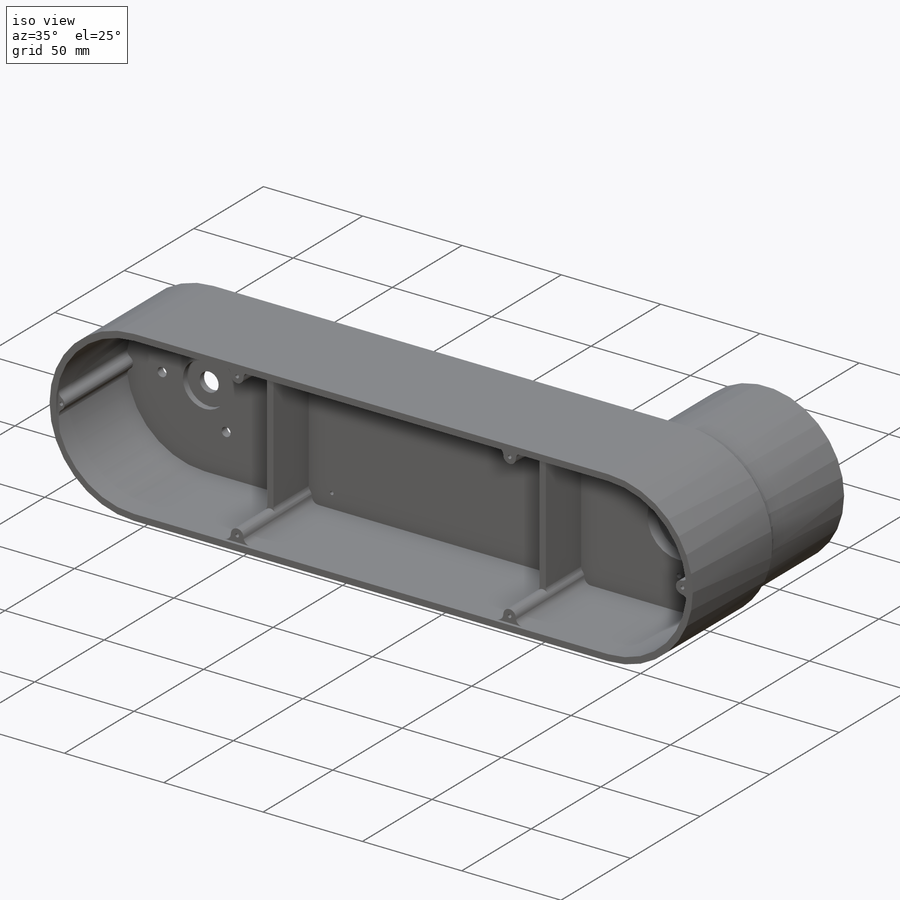
[diagram: iso view]
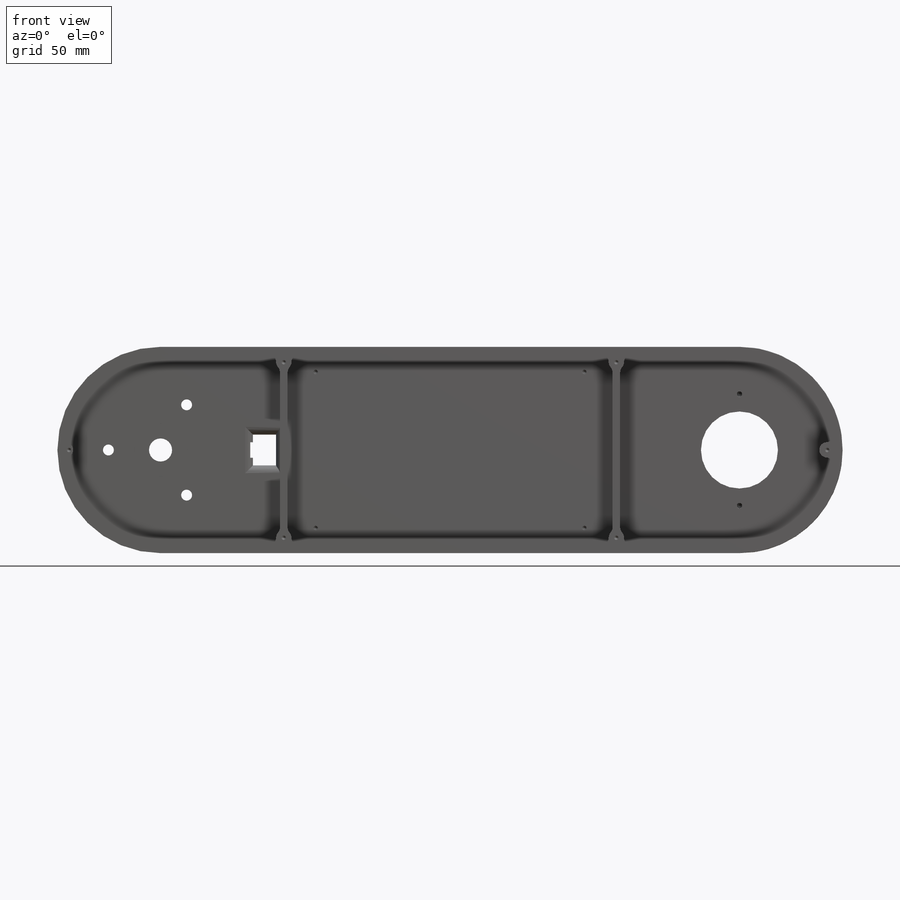
[diagram: front view]
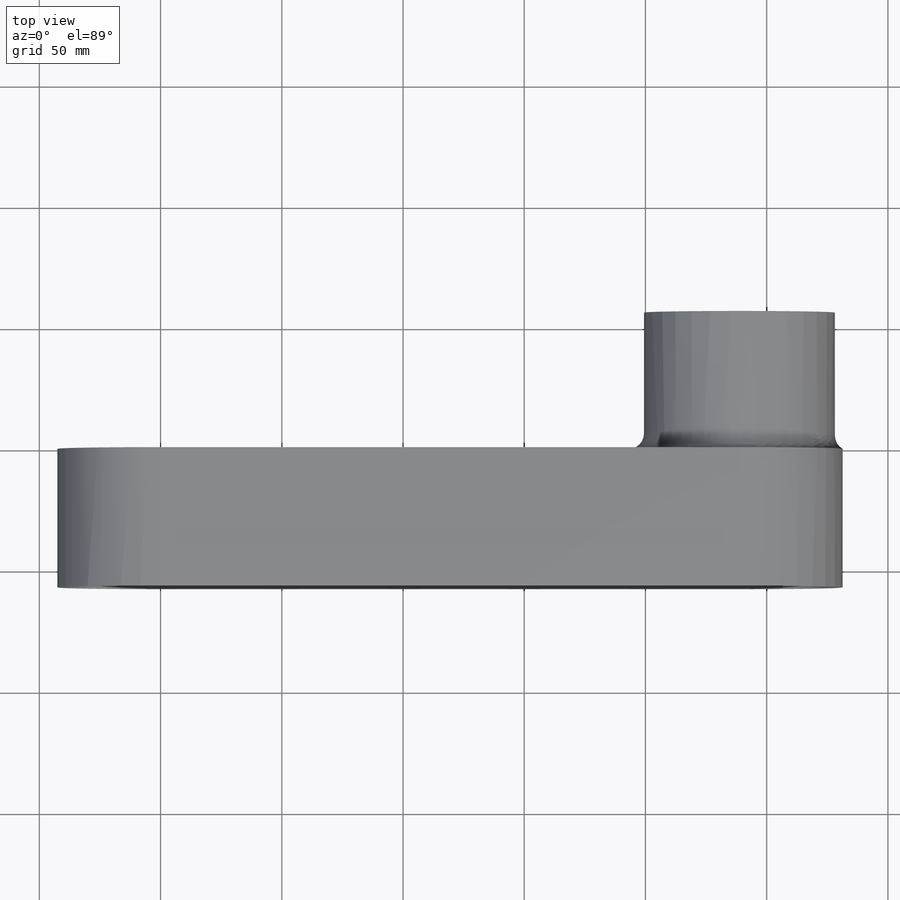
[diagram: top view]
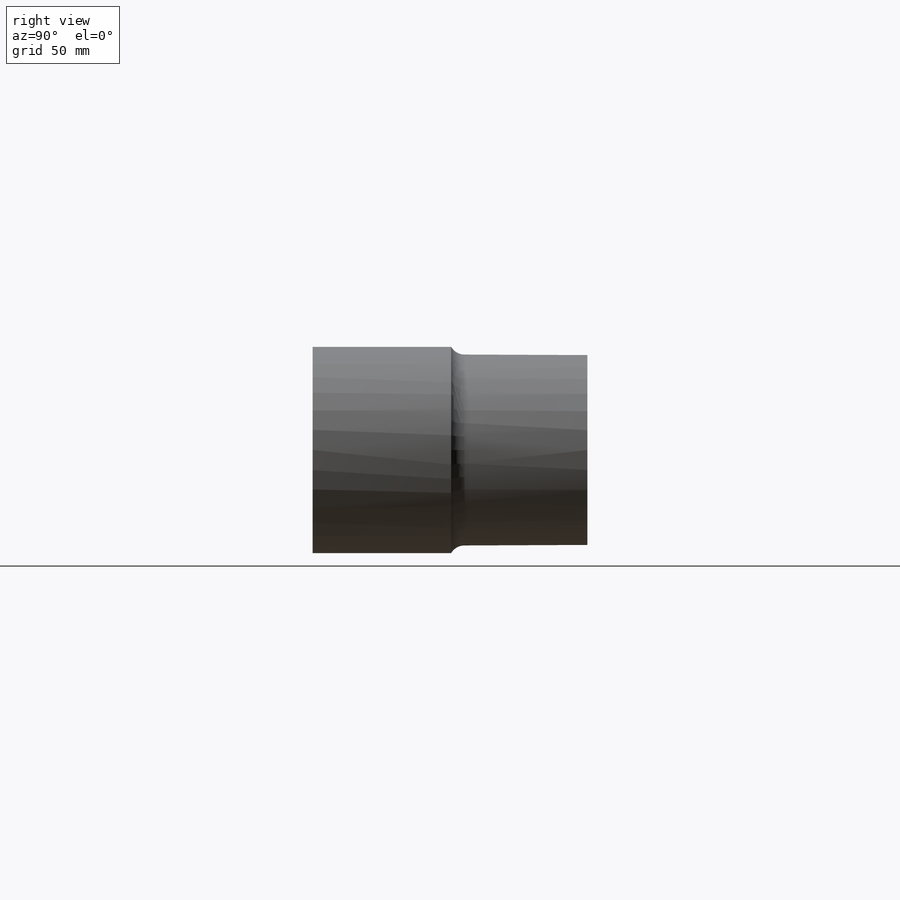
[diagram: right view]
SOLIDWORKS PART (.sldprt)
format: sldprt  version: not decoded by parser v0  size: 947,200 bytes
history: native  units: mm
features: sketch x30, thread x16, extrude x14, cut_extrude x10, plane x7, hole x5, fillet x5, material x1 (+12 scaffold rows collapsed)
feature tree (100):
  scaffold x12  (default folders/planes/origin — collapsed)
  material  "Material <not specified>"
  sketch  "Sketch1"  dims[D1=85.09mm D2=238.76mm D3=3.175mm]
  extrude  "Boss-Extrude1"  Depth=57.15mm
  extrude  "Boss-Extrude3"  [1 undecoded]
  sketch  "Sketch1<4>"  dims[D1=6.35mm]
  plane  "Plane1"
  plane  "Plane2"
  plane  "Plane3"
  sketch  "Sketch3"  dims[D1=9.525mm]
  cut_extrude  "Cut-Extrude1"  [1 undecoded]
  sketch  "Sketch4"  dims[D2=10.0mm D1=17.5mm]
  cut_extrude  "Cut-Extrude2"  Depth=5.08mm
  extrude  "Axis2"  [1 undecoded]
  extrude  "Axis3"  [1 undecoded]
  sketch  "Sketch39"  dims[D1=12.0mm D2=12.0mm]
  cut_extrude  "Cut-Extrude9"  Depth=3.5mm
  sketch  "Sketch5"  dims[c1.D1=63.5mm c1.D2=69.85mm c2.D1=63.5mm c2.D2=3.175mm c3.D1=6.35mm]
  extrude  "Boss-Extrude4"  Depth=56.2125mm
  plane  "Plane4"  Offset=3.175mm
  extrude  "Axis4"  [1 undecoded]
  sketch  "Sketch18"  dims[D1=63.5mm]
  extrude  "Boss-Extrude6"  Depth=27.94mm
  sketch  "Sketch6"  dims[D1=31.75mm]
  cut_extrude  "Cut-Extrude3"  Depth=6.35mm
  plane  "Plane5"
  extrude  "Axis5"  [1 undecoded]
  sketch  "Sketch22"  dims[D1=41.275mm]
  cut_extrude  "Cut-Extrude5"  [1 undecoded]
  plane  "Plane7"  Offset=22.225mm
  sketch  "Sketch19"  dims[D1=43.815mm]
  cut_extrude  "Cut-Extrude4"  Depth=1.7272mm
  sketch  "Sketch10"  dims[D2=4.7625mm D1=7.62mm D3=23.495mm D4=23.495mm D5=12.7mm]
  hole  "#10-32 Tapped Hole2"  Diameter=4.0386mm Depth=3.81mm
  sketch  "Sketch16"
  sketch  "Sketch15"  dims[hole-wizard template sketch: 47 standard entries collapsed; hole parameters kept: c15.Tap Drill Depth=3.81mm c15.D3=~14.816244mm c15.Drill Angle=118.0deg]
  thread  "Hole Thread17"  Diameter=3.81mm  [1 undecoded]
  thread  "Hole Thread18"  Diameter=3.81mm  [1 undecoded]
  thread  "Hole Thread19"  Diameter=3.81mm  [1 undecoded]
  thread  "Hole Thread20"  Diameter=3.81mm  [1 undecoded]
  extrude  "Axis6"  [1 undecoded]
  extrude  "Axis7"  [1 undecoded]
  extrude  "Axis8"  [1 undecoded]
  extrude  "Axis9"  [1 undecoded]
  sketch  "Sketch23"  dims[c1.D2=1.5875mm c1.D1=36.195mm c1.D3=36.195mm c2.D3=4.0]
  cut_extrude  "Cut-Extrude6"  Depth=12.7mm
  sketch  "Sketch24"  dims[D1=46.0248mm D2=~5.514885mm]
  hole  "#4-40 Tapped Hole1"  Diameter=2.2606mm Depth=8.255mm
  sketch  "Sketch26"
  sketch  "Sketch25"  dims[hole-wizard template sketch: 50 standard entries collapsed; hole parameters above]
  thread  "Hole Thread21"  Diameter=6.35mm  [1 undecoded]
  thread  "Hole Thread22"  Diameter=6.35mm  [1 undecoded]
  sketch  "Sketch28"  dims[D1=6.35mm D2=6.35mm D3=50.8mm D4=6.35mm D5=3.175mm D6=50.8mm D7=6.35mm D8=6.35mm D9=6.35mm D10=6.35mm D11=1.5875mm D12=3.175mm D13=3.175mm D14=3.1877mm]
  extrude  "Boss-Extrude7"  Depth=1.5875mm
  extrude  "Boss-Extrude8"  [1 undecoded]
  sketch  "Sketch28<4>"  dims[D1=25.4mm]
  fillet  "Fillet1"  Radius=3.175mm
  fillet  "Fillet2"  Radius=3.175mm
  plane  "Plane8"
  hole  "#2-56 Tapped Hole2"  Diameter=1.778mm Depth=12.7mm
  sketch  "Sketch33"
  sketch  "Sketch31"  dims[hole-wizard template sketch: 50 standard entries collapsed; hole parameters above]
  thread  "Hole Thread23"  Diameter=11.43mm  [1 undecoded]
  thread  "Hole Thread24"  Diameter=11.43mm  [1 undecoded]
  thread  "Hole Thread25"  Diameter=11.43mm  [1 undecoded]
  thread  "Hole Thread26"  Diameter=11.43mm  [1 undecoded]
  thread  "Hole Thread27"  Diameter=11.43mm  [1 undecoded]
  thread  "Hole Thread28"  Diameter=11.43mm  [1 undecoded]
  sketch  "Sketch35"  dims[c1.D1=43.0mm c1.D2=~4.182068mm c2.D2=3.0]
  hole  "CSK for M4 Hex Socket Countersunk Head Screw1"  Diameter=4.5mm Depth=57.15mm
  sketch  "Sketch37"
  sketch  "Sketch36"  dims[hole-wizard template sketch: 55 standard entries collapsed; hole parameters kept: c17.Thru Hole Depth=57.15mm c17.Near C'Sink Dia.=9.18mm c17.D4=~3.666174mm c17.Near C'Sink Angle=90.0deg]
  sketch  "Sketch38"  dims[D1=22.0mm]
  cut_extrude  "Cut-Extrude8"  Depth=3.175mm
  sketch  "Sketch7"  dims[c1.D1=12.7mm c1.D2=117.1702mm c1.D3=78.74mm c1.D4=50.8mm c2.D1=25.4mm c2.D5=25.4mm c2.D4=3.175mm c2.D6=32.1818mm c2.D7=3.175mm]
  fillet  "Fillet7"  Radius=6.35mm
  hole  "#2-56 Tapped Hole3"  Diameter=1.778mm Depth=3.175mm
  sketch  "Sketch41"
  sketch  "Sketch40"  dims[hole-wizard template sketch: 50 standard entries collapsed; hole parameters above]
  thread  "Hole Thread29"  Diameter=3.175mm  [1 undecoded]
  thread  "Hole Thread30"  Diameter=3.175mm  [1 undecoded]
  thread  "Hole Thread31"  Diameter=3.175mm  [1 undecoded]
  thread  "Hole Thread32"  Diameter=3.175mm  [1 undecoded]
  sketch  "Sketch43"  dims[c1.D1=25.4mm c1.D2=12.7mm c1.D3=9.525mm c1.D4=6.35mm c2.D4=90.0deg c3.D4=6.096mm c3.D5=6.35mm]
  cut_extrude  "Cut-Extrude10"  Depth=6.35mm
  cut_extrude  "Cut-Extrude11"  [1 undecoded]
  sketch  "Sketch43<4>"  dims[D1=12.7mm]
  fillet  "Fillet9"  Radius=3.175mm
  fillet  "Fillet10"  Radius=3.175mm
decode coverage: 62 of 80 modeling features carry decoded parameters
note: ~ marks probable driven/reference dimensions
note: 29 parameter values undecoded
summary: no parameter record found for 13 features; Diameter pulled from absorbed wizard sketch
note: suppression state not decoded; provenance and decode notes live in map.json
